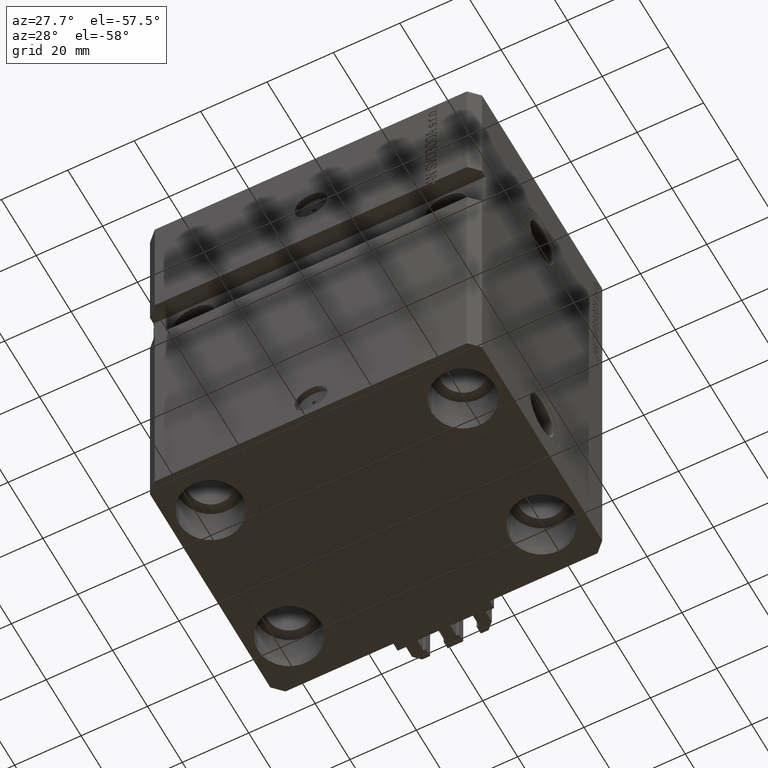
[diagram: clean part render]
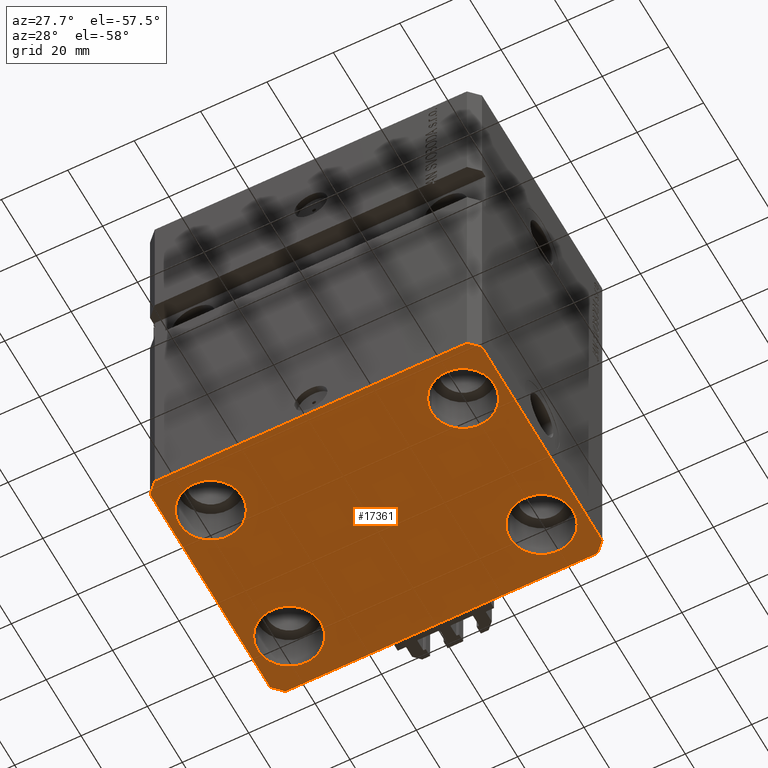
[diagram: same view with one face highlighted and labeled with its STEP entity id]
A machine part, auxiliary view. The second image highlights one B-rep face of the part: STEP entity #17361.
In plain terms, the highlighted planar face has unit normal (0, 0, 1).
Its self-contained STEP definition (entity closure, byte-faithful):
#32 = CARTESIAN_POINT ( 'NONE',  ( -38.00000000000000711, 22.50000000000000000, -125.0000000000000000 ) ) ;
#259 = AXIS2_PLACEMENT_3D ( 'NONE', #22750, #33485, #30062 ) ;
#284 = CARTESIAN_POINT ( 'NONE',  ( 28.50000000000000355, -22.50000000000000000, -125.0000000000000000 ) ) ;
#655 = AXIS2_PLACEMENT_3D ( 'NONE', #42235, #19109, #8132 ) ;
#813 = FACE_BOUND ( 'NONE', #31486, .T. ) ;
#1087 = EDGE_CURVE ( 'NONE', #31928, #10118, #46513, .T. ) ;
#1175 = LINE ( 'NONE', #16785, #32641 ) ;
#2293 = LINE ( 'NONE', #2526, #35187 ) ;
#2526 = CARTESIAN_POINT ( 'NONE',  ( 47.00000000000000000, -37.50000000000000711, -125.0000000000000000 ) ) ;
#2540 = CARTESIAN_POINT ( 'NONE',  ( 38.00000000000000711, -22.50000000000000000, -125.0000000000000000 ) ) ;
#2542 = CARTESIAN_POINT ( 'NONE',  ( 47.00000000000000000, -37.50000000000000711, -125.0000000000000000 ) ) ;
#3340 = CARTESIAN_POINT ( 'NONE',  ( 28.50000000000000355, 22.50000000000001421, -125.0000000000000000 ) ) ;
#4201 = CIRCLE ( 'NONE', #23642, 9.500000000000001776 ) ;
#4470 = AXIS2_PLACEMENT_3D ( 'NONE', #2540, #17415, #32270 ) ;
#4907 = CARTESIAN_POINT ( 'NONE',  ( 50.00000000000000000, -34.50000000000000711, -125.0000000000000000 ) ) ;
#5169 = EDGE_CURVE ( 'NONE', #38560, #24240, #15921, .T. ) ;
#5296 = VERTEX_POINT ( 'NONE', #32947 ) ;
#5307 = CARTESIAN_POINT ( 'NONE',  ( 50.00000000000051870, 34.49999999999995026, -125.0000000000000000 ) ) ;
#5375 = DIRECTION ( 'NONE',  ( 1.000000000000000000, 0.000000000000000000, 0.000000000000000000 ) ) ;
#6124 = LINE ( 'NONE', #47056, #25781 ) ;
#6221 = VERTEX_POINT ( 'NONE', #29448 ) ;
#6303 = ORIENTED_EDGE ( 'NONE', *, *, #39609, .F. ) ;
#6344 = ORIENTED_EDGE ( 'NONE', *, *, #13181, .T. ) ;
#6765 = CARTESIAN_POINT ( 'NONE',  ( -47.50000000000000711, -22.50000000000000000, -125.0000000000000000 ) ) ;
#6831 = VECTOR ( 'NONE', #22570, 1000.000000000000000 ) ;
#7202 = CARTESIAN_POINT ( 'NONE',  ( -38.00000000000000711, -22.50000000000000000, -125.0000000000000000 ) ) ;
#7262 = DIRECTION ( 'NONE',  ( 1.000000000000000000, 0.000000000000000000, 0.000000000000000000 ) ) ;
#7690 = EDGE_CURVE ( 'NONE', #13109, #27475, #25630, .T. ) ;
#7871 = DIRECTION ( 'NONE',  ( 0.7071067811865491270, -0.7071067811865459074, 0.000000000000000000 ) ) ;
#7879 = VECTOR ( 'NONE', #39661, 1000.000000000000000 ) ;
#7952 = LINE ( 'NONE', #15998, #6831 ) ;
#8130 = PLANE ( 'NONE',  #259 ) ;
#8132 = DIRECTION ( 'NONE',  ( 1.000000000000000000, 0.000000000000000000, 0.000000000000000000 ) ) ;
#8349 = EDGE_CURVE ( 'NONE', #28159, #15268, #1175, .T. ) ;
#8591 = CARTESIAN_POINT ( 'NONE',  ( 47.50000000000000711, -22.50000000000000000, -125.0000000000000000 ) ) ;
#8985 = CARTESIAN_POINT ( 'NONE',  ( -47.50000000000000711, 22.50000000000000000, -125.0000000000000000 ) ) ;
#10118 = VERTEX_POINT ( 'NONE', #284 ) ;
#11332 = EDGE_CURVE ( 'NONE', #38788, #13415, #17191, .T. ) ;
#11623 = DIRECTION ( 'NONE',  ( -0.000000000000000000, -0.000000000000000000, 1.000000000000000000 ) ) ;
#11993 = VECTOR ( 'NONE', #14922, 1000.000000000000000 ) ;
#12250 = CARTESIAN_POINT ( 'NONE',  ( -50.00000000000000000, -34.50000000000000000, -125.0000000000000000 ) ) ;
#12272 = FACE_OUTER_BOUND ( 'NONE', #33151, .T. ) ;
#12312 = CIRCLE ( 'NONE', #655, 9.500000000000001776 ) ;
#12449 = DIRECTION ( 'NONE',  ( -0.000000000000000000, -0.000000000000000000, 1.000000000000000000 ) ) ;
#13109 = VERTEX_POINT ( 'NONE', #8985 ) ;
#13181 = EDGE_CURVE ( 'NONE', #27475, #13109, #18036, .T. ) ;
#13415 = VERTEX_POINT ( 'NONE', #33967 ) ;
#14178 = AXIS2_PLACEMENT_3D ( 'NONE', #7202, #26191, #33749 ) ;
#14264 = VERTEX_POINT ( 'NONE', #14998 ) ;
#14698 = VECTOR ( 'NONE', #29669, 1000.000000000000114 ) ;
#14922 = DIRECTION ( 'NONE',  ( 7.441712302741091634E-15, 1.000000000000000000, 0.000000000000000000 ) ) ;
#14998 = CARTESIAN_POINT ( 'NONE',  ( -50.00000000000001421, 34.50000000000000000, -125.0000000000000000 ) ) ;
#15210 = FACE_BOUND ( 'NONE', #43150, .T. ) ;
#15268 = VERTEX_POINT ( 'NONE', #40131 ) ;
#15312 = VERTEX_POINT ( 'NONE', #3340 ) ;
#15511 = CARTESIAN_POINT ( 'NONE',  ( -28.50000000000000355, 22.50000000000000000, -125.0000000000000000 ) ) ;
#15921 = LINE ( 'NONE', #12250, #23951 ) ;
#15998 = CARTESIAN_POINT ( 'NONE',  ( -47.00000000000000000, -37.49999999999999289, -125.0000000000000000 ) ) ;
#16184 = VERTEX_POINT ( 'NONE', #5307 ) ;
#16510 = EDGE_CURVE ( 'NONE', #15312, #5296, #17373, .T. ) ;
#16785 = CARTESIAN_POINT ( 'NONE',  ( 47.00000000000056843, 37.49999999999999289, -125.0000000000000000 ) ) ;
#17191 = CIRCLE ( 'NONE', #44410, 9.500000000000001776 ) ;
#17235 = ORIENTED_EDGE ( 'NONE', *, *, #5169, .F. ) ;
#17361 = ADVANCED_FACE ( 'NONE', ( #18628, #813, #15210, #22987, #12272 ), #8130, .F. ) ;
#17373 = CIRCLE ( 'NONE', #20454, 9.500000000000001776 ) ;
#17415 = DIRECTION ( 'NONE',  ( -0.000000000000000000, -0.000000000000000000, 1.000000000000000000 ) ) ;
#18036 = CIRCLE ( 'NONE', #38237, 9.500000000000001776 ) ;
#18349 = EDGE_CURVE ( 'NONE', #26167, #6221, #2293, .T. ) ;
#18628 = FACE_BOUND ( 'NONE', #28635, .T. ) ;
#18704 = DIRECTION ( 'NONE',  ( 1.000000000000000000, 0.000000000000000000, 0.000000000000000000 ) ) ;
#18815 = LINE ( 'NONE', #4907, #11993 ) ;
#19109 = DIRECTION ( 'NONE',  ( -0.000000000000000000, -0.000000000000000000, 1.000000000000000000 ) ) ;
#20454 = AXIS2_PLACEMENT_3D ( 'NONE', #26157, #44442, #30056 ) ;
#21129 = ORIENTED_EDGE ( 'NONE', *, *, #8349, .F. ) ;
#22570 = DIRECTION ( 'NONE',  ( 1.000000000000000000, -1.476360405086644309E-16, 0.000000000000000000 ) ) ;
#22750 = CARTESIAN_POINT ( 'NONE',  ( 0.000000000000000000, 0.000000000000000000, -125.0000000000000000 ) ) ;
#22987 = FACE_BOUND ( 'NONE', #35841, .T. ) ;
#23642 = AXIS2_PLACEMENT_3D ( 'NONE', #27548, #12449, #5375 ) ;
#23651 = EDGE_CURVE ( 'NONE', #24240, #26167, #7952, .T. ) ;
#23951 = VECTOR ( 'NONE', #7871, 1000.000000000000114 ) ;
#24240 = VERTEX_POINT ( 'NONE', #45544 ) ;
#24988 = CARTESIAN_POINT ( 'NONE',  ( 47.00000000000056843, 37.49999999999999289, -125.0000000000000000 ) ) ;
#25521 = CARTESIAN_POINT ( 'NONE',  ( -47.00000000000001421, 37.50000000000000000, -125.0000000000000000 ) ) ;
#25566 = ORIENTED_EDGE ( 'NONE', *, *, #46359, .T. ) ;
#25630 = CIRCLE ( 'NONE', #47409, 9.500000000000001776 ) ;
#25781 = VECTOR ( 'NONE', #28532, 1000.000000000000000 ) ;
#26157 = CARTESIAN_POINT ( 'NONE',  ( 38.00000000000000711, 22.50000000000001421, -125.0000000000000000 ) ) ;
#26167 = VERTEX_POINT ( 'NONE', #2542 ) ;
#26191 = DIRECTION ( 'NONE',  ( -0.000000000000000000, -0.000000000000000000, 1.000000000000000000 ) ) ;
#27475 = VERTEX_POINT ( 'NONE', #15511 ) ;
#27529 = ORIENTED_EDGE ( 'NONE', *, *, #38723, .F. ) ;
#27548 = CARTESIAN_POINT ( 'NONE',  ( 38.00000000000000711, -22.50000000000000000, -125.0000000000000000 ) ) ;
#28159 = VERTEX_POINT ( 'NONE', #24988 ) ;
#28355 = EDGE_CURVE ( 'NONE', #5296, #15312, #12312, .T. ) ;
#28532 = DIRECTION ( 'NONE',  ( 2.011273595335428326E-16, -1.000000000000000000, 0.000000000000000000 ) ) ;
#28535 = ORIENTED_EDGE ( 'NONE', *, *, #1087, .T. ) ;
#28635 = EDGE_LOOP ( 'NONE', ( #43483, #44605 ) ) ;
#29293 = CARTESIAN_POINT ( 'NONE',  ( -50.00000000000000000, -34.50000000000000000, -125.0000000000000000 ) ) ;
#29448 = CARTESIAN_POINT ( 'NONE',  ( 50.00000000000000000, -34.50000000000000711, -125.0000000000000000 ) ) ;
#29645 = EDGE_CURVE ( 'NONE', #16184, #28159, #37683, .T. ) ;
#29669 = DIRECTION ( 'NONE',  ( -0.7071067811865361374, 0.7071067811865588970, 0.000000000000000000 ) ) ;
#30056 = DIRECTION ( 'NONE',  ( 1.000000000000000000, 0.000000000000000000, 0.000000000000000000 ) ) ;
#30062 = DIRECTION ( 'NONE',  ( 1.000000000000000000, 0.000000000000000000, -0.000000000000000000 ) ) ;
#30509 = CIRCLE ( 'NONE', #14178, 9.500000000000001776 ) ;
#30910 = DIRECTION ( 'NONE',  ( -1.000000000000000000, 7.381802025433175941E-17, 0.000000000000000000 ) ) ;
#31486 = EDGE_LOOP ( 'NONE', ( #25566, #28535 ) ) ;
#31547 = ORIENTED_EDGE ( 'NONE', *, *, #28355, .T. ) ;
#31928 = VERTEX_POINT ( 'NONE', #8591 ) ;
#32270 = DIRECTION ( 'NONE',  ( 1.000000000000000000, 0.000000000000000000, 0.000000000000000000 ) ) ;
#32397 = ORIENTED_EDGE ( 'NONE', *, *, #18349, .F. ) ;
#32641 = VECTOR ( 'NONE', #30910, 1000.000000000000000 ) ;
#32947 = CARTESIAN_POINT ( 'NONE',  ( 47.50000000000000711, 22.50000000000001421, -125.0000000000000000 ) ) ;
#33151 = EDGE_LOOP ( 'NONE', ( #21129, #42042, #47494, #32397, #33849, #17235, #6303, #27529 ) ) ;
#33485 = DIRECTION ( 'NONE',  ( 0.000000000000000000, 0.000000000000000000, 1.000000000000000000 ) ) ;
#33749 = DIRECTION ( 'NONE',  ( 1.000000000000000000, 0.000000000000000000, 0.000000000000000000 ) ) ;
#33800 = CARTESIAN_POINT ( 'NONE',  ( 50.00000000000051870, 34.49999999999995026, -125.0000000000000000 ) ) ;
#33849 = ORIENTED_EDGE ( 'NONE', *, *, #23651, .F. ) ;
#33967 = CARTESIAN_POINT ( 'NONE',  ( -28.50000000000000355, -22.50000000000000000, -125.0000000000000000 ) ) ;
#35187 = VECTOR ( 'NONE', #42237, 1000.000000000000000 ) ;
#35841 = EDGE_LOOP ( 'NONE', ( #39705, #6344 ) ) ;
#37683 = LINE ( 'NONE', #33800, #14698 ) ;
#38156 = CARTESIAN_POINT ( 'NONE',  ( -38.00000000000000711, 22.50000000000000000, -125.0000000000000000 ) ) ;
#38237 = AXIS2_PLACEMENT_3D ( 'NONE', #38156, #11623, #18704 ) ;
#38560 = VERTEX_POINT ( 'NONE', #29293 ) ;
#38723 = EDGE_CURVE ( 'NONE', #15268, #14264, #44042, .T. ) ;
#38788 = VERTEX_POINT ( 'NONE', #6765 ) ;
#39609 = EDGE_CURVE ( 'NONE', #14264, #38560, #6124, .T. ) ;
#39661 = DIRECTION ( 'NONE',  ( -0.7071067811865483499, -0.7071067811865466846, 0.000000000000000000 ) ) ;
#39705 = ORIENTED_EDGE ( 'NONE', *, *, #7690, .T. ) ;
#40131 = CARTESIAN_POINT ( 'NONE',  ( -47.00000000000001421, 37.50000000000000000, -125.0000000000000000 ) ) ;
#40259 = DIRECTION ( 'NONE',  ( -0.000000000000000000, -0.000000000000000000, 1.000000000000000000 ) ) ;
#40541 = EDGE_CURVE ( 'NONE', #13415, #38788, #30509, .T. ) ;
#40645 = DIRECTION ( 'NONE',  ( -0.000000000000000000, -0.000000000000000000, 1.000000000000000000 ) ) ;
#41074 = ORIENTED_EDGE ( 'NONE', *, *, #16510, .T. ) ;
#42042 = ORIENTED_EDGE ( 'NONE', *, *, #29645, .F. ) ;
#42235 = CARTESIAN_POINT ( 'NONE',  ( 38.00000000000000711, 22.50000000000001421, -125.0000000000000000 ) ) ;
#42237 = DIRECTION ( 'NONE',  ( 0.7071067811865483499, 0.7071067811865466846, 0.000000000000000000 ) ) ;
#43150 = EDGE_LOOP ( 'NONE', ( #41074, #31547 ) ) ;
#43483 = ORIENTED_EDGE ( 'NONE', *, *, #11332, .T. ) ;
#44042 = LINE ( 'NONE', #25521, #7879 ) ;
#44303 = CARTESIAN_POINT ( 'NONE',  ( -38.00000000000000711, -22.50000000000000000, -125.0000000000000000 ) ) ;
#44410 = AXIS2_PLACEMENT_3D ( 'NONE', #44303, #40645, #7262 ) ;
#44442 = DIRECTION ( 'NONE',  ( -0.000000000000000000, -0.000000000000000000, 1.000000000000000000 ) ) ;
#44605 = ORIENTED_EDGE ( 'NONE', *, *, #40541, .T. ) ;
#45544 = CARTESIAN_POINT ( 'NONE',  ( -47.00000000000000000, -37.49999999999999289, -125.0000000000000000 ) ) ;
#46359 = EDGE_CURVE ( 'NONE', #10118, #31928, #4201, .T. ) ;
#46513 = CIRCLE ( 'NONE', #4470, 9.500000000000001776 ) ;
#47011 = EDGE_CURVE ( 'NONE', #6221, #16184, #18815, .T. ) ;
#47056 = CARTESIAN_POINT ( 'NONE',  ( -50.00000000000001421, 34.50000000000000000, -125.0000000000000000 ) ) ;
#47329 = DIRECTION ( 'NONE',  ( 1.000000000000000000, 0.000000000000000000, 0.000000000000000000 ) ) ;
#47409 = AXIS2_PLACEMENT_3D ( 'NONE', #32, #40259, #47329 ) ;
#47494 = ORIENTED_EDGE ( 'NONE', *, *, #47011, .F. ) ;